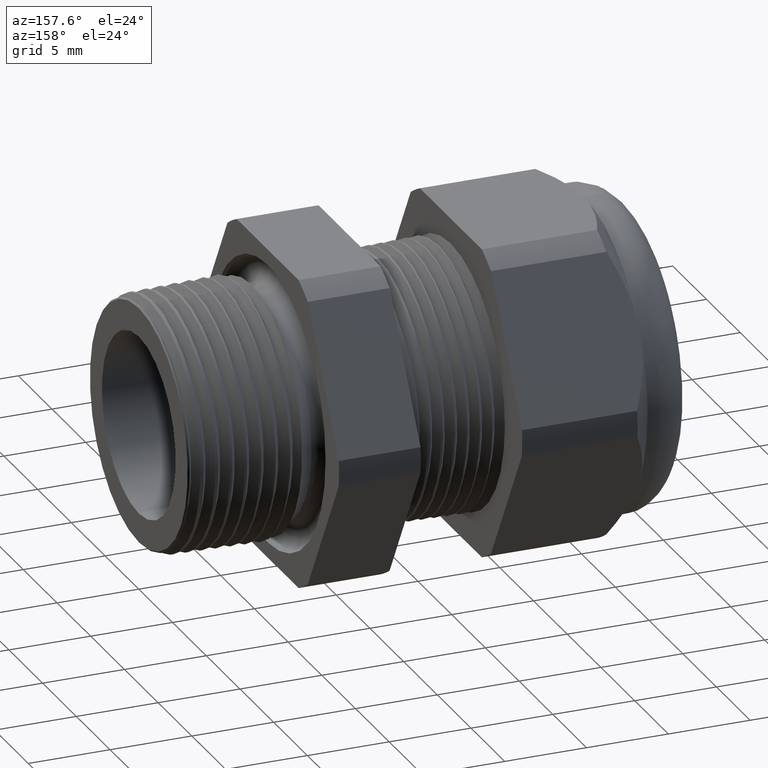
[diagram: clean part render]
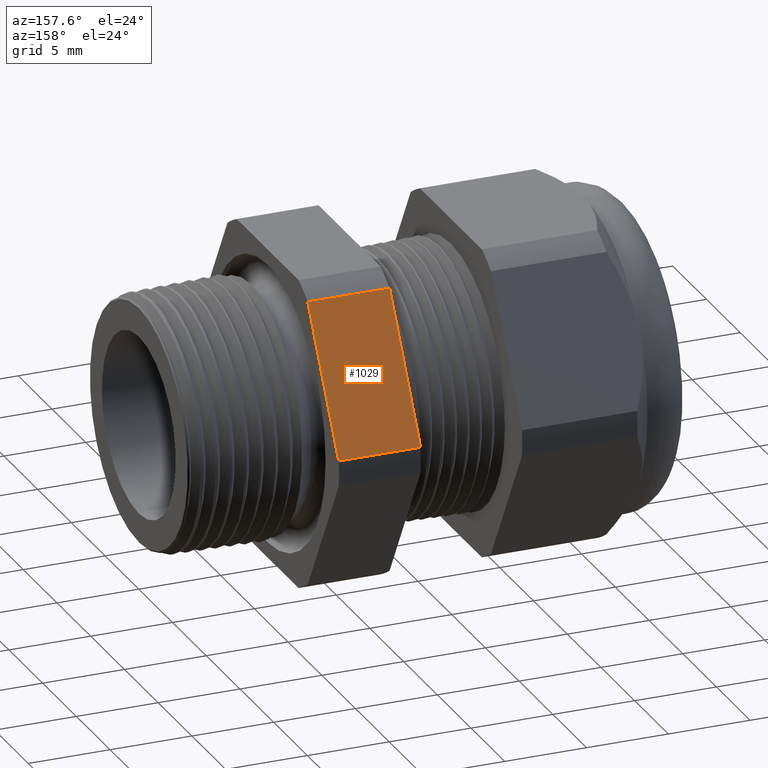
[diagram: same view with one face highlighted and labeled with its STEP entity id]
A machine part, auxiliary view. The second image highlights one B-rep face of the part: STEP entity #1029.
In plain terms, the highlighted planar face has unit normal (0, 0.866, 0.5).
Its self-contained STEP definition (entity closure, byte-faithful):
#799 = VERTEX_POINT ( 'NONE', #3025 ) ;
#858 = EDGE_CURVE ( 'NONE', #799, #859, #3095, .T. ) ;
#859 = VERTEX_POINT ( 'NONE', #3150 ) ;
#1004 = ORIENTED_EDGE ( 'NONE', *, *, #1025, .F. ) ;
#1005 = ORIENTED_EDGE ( 'NONE', *, *, #858, .F. ) ;
#1006 = ORIENTED_EDGE ( 'NONE', *, *, #1007, .T. ) ;
#1007 = EDGE_CURVE ( 'NONE', #799, #1008, #3366, .T. ) ;
#1008 = VERTEX_POINT ( 'NONE', #3358 ) ;
#1009 = ORIENTED_EDGE ( 'NONE', *, *, #1010, .F. ) ;
#1010 = EDGE_CURVE ( 'NONE', #1026, #1008, #3357, .T. ) ;
#1025 = EDGE_CURVE ( 'NONE', #859, #1026, #3400, .T. ) ;
#1026 = VERTEX_POINT ( 'NONE', #3392 ) ;
#1029 = ADVANCED_FACE ( 'NONE', ( #3385 ), #3447, .T. ) ;
#1030 = EDGE_LOOP ( 'NONE', ( #1004, #1005, #1006, #1009 ) ) ;
#3025 = CARTESIAN_POINT ( 'NONE',  ( -0.3100000000000000000, 0.4150909474475088000, 0.03104138925901233200 ) ) ;
#3095 = LINE ( 'NONE', #3153, #3152 ) ;
#3150 = CARTESIAN_POINT ( 'NONE',  ( -0.3100000000000000000, 0.2344281053908206000, 0.3439586107409877100 ) ) ;
#3151 = DIRECTION ( 'NONE',  ( 0.0000000000000000000, -0.4999999999999998300, 0.8660254037844386000 ) ) ;
#3152 = VECTOR ( 'NONE', #3151, 39.37007874015748900 ) ;
#3153 = CARTESIAN_POINT ( 'NONE',  ( -0.3100000000000000000, 0.5122595264191646100, -0.1372595264191644500 ) ) ;
#3354 = DIRECTION ( 'NONE',  ( 0.0000000000000000000, 0.4999999999999998300, -0.8660254037844386000 ) ) ;
#3355 = VECTOR ( 'NONE', #3354, 39.37007874015748900 ) ;
#3356 = CARTESIAN_POINT ( 'NONE',  ( -0.5068503937007874400, 0.5122595264191646100, -0.1372595264191644500 ) ) ;
#3357 = LINE ( 'NONE', #3356, #3355 ) ;
#3358 = CARTESIAN_POINT ( 'NONE',  ( -0.5068503937007874400, 0.4150909474475088000, 0.03104138925901233200 ) ) ;
#3359 = DIRECTION ( 'NONE',  ( -1.000000000000000000, 0.0000000000000000000, 0.0000000000000000000 ) ) ;
#3360 = VECTOR ( 'NONE', #3359, 39.37007874015748100 ) ;
#3361 = CARTESIAN_POINT ( 'NONE',  ( 0.0000000000000000000, 0.4150909474475088000, 0.03104138925901233200 ) ) ;
#3366 = LINE ( 'NONE', #3361, #3360 ) ;
#3385 = FACE_OUTER_BOUND ( 'NONE', #1030, .T. ) ;
#3392 = CARTESIAN_POINT ( 'NONE',  ( -0.5068503937007874400, 0.2344281053908206000, 0.3439586107409877100 ) ) ;
#3393 = DIRECTION ( 'NONE',  ( -1.000000000000000000, 0.0000000000000000000, 0.0000000000000000000 ) ) ;
#3394 = VECTOR ( 'NONE', #3393, 39.37007874015748100 ) ;
#3395 = CARTESIAN_POINT ( 'NONE',  ( 0.0000000000000000000, 0.2344281053908206000, 0.3439586107409877100 ) ) ;
#3400 = LINE ( 'NONE', #3395, #3394 ) ;
#3443 = DIRECTION ( 'NONE',  ( 0.0000000000000000000, -0.4999999999999998300, 0.8660254037844386000 ) ) ;
#3444 = DIRECTION ( 'NONE',  ( 0.0000000000000000000, 0.8660254037844387100, 0.4999999999999998900 ) ) ;
#3445 = CARTESIAN_POINT ( 'NONE',  ( 0.0000000000000000000, 0.2344281053908206000, 0.3439586107409877100 ) ) ;
#3446 = AXIS2_PLACEMENT_3D ( 'NONE', #3445, #3444, #3443 ) ;
#3447 = PLANE ( 'NONE',  #3446 ) ;